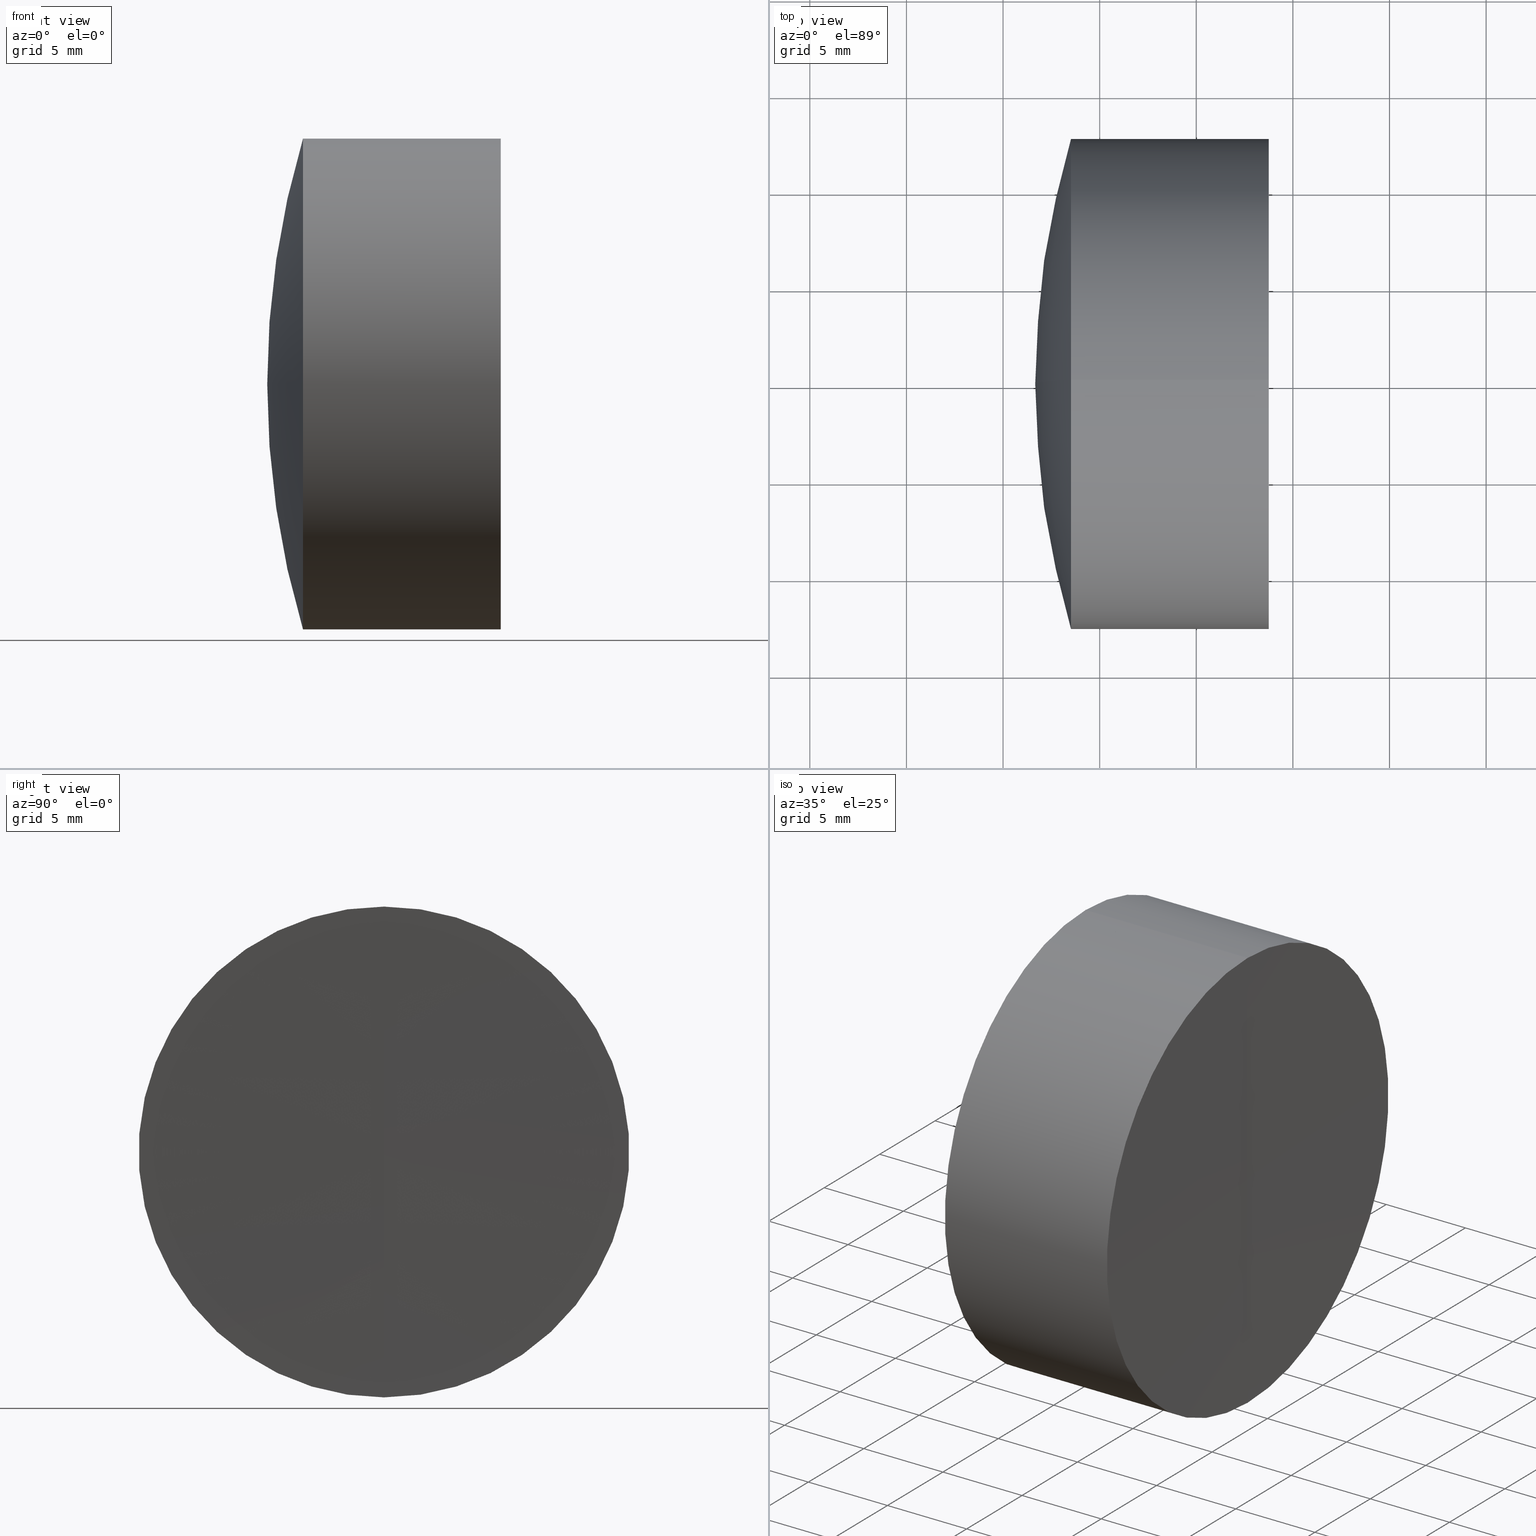
[diagram: canonical four-view strip — front | top / right | iso, engineering-drawing reading convention]
A machine part, canonical four-view strip (front | top / right | iso — engineering-drawing reading convention). The complete STEP part file that produces these views, byte-faithful:
ISO-10303-21;
HEADER;
FILE_DESCRIPTION (( 'STEP AP214' ),
    '1' );
FILE_NAME ('145123.STEP',
    '2019-06-03T05:37:12',
    ( 'user' ),
    ( '΢���й�' ),
    'SwSTEP 2.0',
    'SolidWorks 2016',
    '' );
FILE_SCHEMA (( 'AUTOMOTIVE_DESIGN' ));
ENDSEC;

DATA;
#1 = PRODUCT_RELATED_PRODUCT_CATEGORY ( 'part', '', ( #243 ) ) ;
#2 = CIRCLE ( 'NONE', #263, 930.4999999999998900 ) ;
#3 = EDGE_CURVE ( 'NONE', #50, #273, #102, .T. ) ;
#4 = PRODUCT_DEFINITION_FORMATION_WITH_SPECIFIED_SOURCE ( '�κ�', '', #243, .NOT_KNOWN. ) ;
#5 = PRESENTATION_STYLE_ASSIGNMENT (( #306 ) ) ;
#6 = EDGE_CURVE ( 'NONE', #75, #133, #320, .T. ) ;
#7 = SURFACE_STYLE_USAGE ( .BOTH. , #39 ) ;
#8 = DIRECTION ( 'NONE',  ( -0.0000000000000000000, 1.000000000000000000, 1.224646799147353200E-016 ) ) ;
#9 = DIRECTION ( 'NONE',  ( 0.0000000000000000000, 1.000000000000000000, 0.0000000000000000000 ) ) ;
#10 = EDGE_LOOP ( 'NONE', ( #99, #272, #216 ) ) ;
#11 = ADVANCED_FACE ( 'NONE', ( #296 ), #307, .T. ) ;
#12 = CARTESIAN_POINT ( 'NONE',  ( 1254.165030046136300, 0.0000000000000000000, 0.0000000000000000000 ) ) ;
#13 = DIRECTION ( 'NONE',  ( -1.000000000000000000, -0.0000000000000000000, -0.0000000000000000000 ) ) ;
#14 = PRESENTATION_LAYER_ASSIGNMENT (  '', '', ( #316 ) ) ;
#15 = ORIENTED_EDGE ( 'NONE', *, *, #126, .F. ) ;
#16 = DIRECTION ( 'NONE',  ( 0.0000000000000000000, 0.0000000000000000000, 1.000000000000000000 ) ) ;
#17 = CARTESIAN_POINT ( 'NONE',  ( 316.1869586626397700, 0.0000000000000000000, 12.70000000000000500 ) ) ;
#18 = DIRECTION ( 'NONE',  ( 0.0000000000000000000, -1.000000000000000000, 0.0000000000000000000 ) ) ;
#19 = ORIENTED_EDGE ( 'NONE', *, *, #41, .T. ) ;
#20 = AXIS2_PLACEMENT_3D ( 'NONE', #61, #118, #279 ) ;
#21 = CARTESIAN_POINT ( 'NONE',  ( 262.3650300461362700, 0.0000000000000000000, 6.963127528203664000E-015 ) ) ;
#22 = ORIENTED_EDGE ( 'NONE', *, *, #127, .T. ) ;
#23 = CARTESIAN_POINT ( 'NONE',  ( 313.5157627605192400, -1.555301434917138800E-015, 12.70000000000000600 ) ) ;
#24 = DIRECTION ( 'NONE',  ( 0.0000000000000000000, 1.224646799147353200E-016, -1.000000000000000000 ) ) ;
#25 = EDGE_CURVE ( 'NONE', #211, #70, #344, .T. ) ;
#26 = CIRCLE ( 'NONE', #294, 12.70000000000000600 ) ;
#27 = ORIENTED_EDGE ( 'NONE', *, *, #183, .T. ) ;
#28 = CARTESIAN_POINT ( 'NONE',  ( 124.5233095260452400, 0.0000000000000000000, 12.70000000000000600 ) ) ;
#29 = ORIENTED_EDGE ( 'NONE', *, *, #60, .F. ) ;
#30 = AXIS2_PLACEMENT_3D ( 'NONE', #32, #162, #33 ) ;
#31 = ORIENTED_EDGE ( 'NONE', *, *, #269, .T. ) ;
#32 = CARTESIAN_POINT ( 'NONE',  ( 262.3650300461362700, 0.0000000000000000000, 6.963127528203664000E-015 ) ) ;
#33 = DIRECTION ( 'NONE',  ( 0.0000000000000000000, 0.0000000000000000000, 1.000000000000000000 ) ) ;
#34 = DIRECTION ( 'NONE',  ( 0.0000000000000000000, 1.000000000000000000, 0.0000000000000000000 ) ) ;
#35 = DIRECTION ( 'NONE',  ( -1.000000000000000000, -0.0000000000000000000, -0.0000000000000000000 ) ) ;
#36 = DIRECTION ( 'NONE',  ( 0.0000000000000000000, 0.0000000000000000000, -1.000000000000000000 ) ) ;
#37 = ORIENTED_EDGE ( 'NONE', *, *, #215, .T. ) ;
#38 = MANIFOLD_SOLID_BREP ( '��ת3', #332 ) ;
#39 = SURFACE_SIDE_STYLE ('',( #113 ) ) ;
#40 =( NAMED_UNIT ( * ) PLANE_ANGLE_UNIT ( ) SI_UNIT ( $, .RADIAN. ) );
#41 = EDGE_CURVE ( 'NONE', #273, #50, #153, .T. ) ;
#42 = ORIENTED_EDGE ( 'NONE', *, *, #94, .F. ) ;
#43 = DIRECTION ( 'NONE',  ( 1.000000000000000000, 0.0000000000000000000, 0.0000000000000000000 ) ) ;
#44 = EDGE_CURVE ( 'NONE', #347, #318, #193, .T. ) ;
#45 = PRESENTATION_STYLE_ASSIGNMENT (( #291 ) ) ;
#46 = CARTESIAN_POINT ( 'NONE',  ( 316.1869586626397700, 0.0000000000000000000, 0.0000000000000000000 ) ) ;
#47 = VERTEX_POINT ( 'NONE', #237 ) ;
#48 = AXIS2_PLACEMENT_3D ( 'NONE', #134, #329, #186 ) ;
#49 = ADVANCED_FACE ( 'NONE', ( #245 ), #204, .F. ) ;
#50 = VERTEX_POINT ( 'NONE', #56 ) ;
#51 = AXIS2_PLACEMENT_3D ( 'NONE', #82, #298, #267 ) ;
#52 = CIRCLE ( 'NONE', #58, 55.30000000000001800 ) ;
#53 = ORIENTED_EDGE ( 'NONE', *, *, #183, .F. ) ;
#54 = FILL_AREA_STYLE_COLOUR ( '', #81 ) ;
#55 = DIRECTION ( 'NONE',  ( -0.0000000000000000000, -1.000000000000000000, -0.0000000000000000000 ) ) ;
#56 = CARTESIAN_POINT ( 'NONE',  ( 316.1869586626397700, 1.555301434917139200E-015, -12.69999999999999800 ) ) ;
#57 = EDGE_LOOP ( 'NONE', ( #313, #137, #128 ) ) ;
#58 = AXIS2_PLACEMENT_3D ( 'NONE', #136, #8, #107 ) ;
#59 = FILL_AREA_STYLE ('',( #228 ) ) ;
#60 = EDGE_CURVE ( 'NONE', #211, #64, #150, .T. ) ;
#61 = CARTESIAN_POINT ( 'NONE',  ( 313.5157627605192400, 0.0000000000000000000, 0.0000000000000000000 ) ) ;
#62 = SPHERICAL_SURFACE ( 'NONE', #189, 44.50000000000002800 ) ;
#63 = ADVANCED_FACE ( 'NONE', ( #123 ), #62, .T. ) ;
#64 = VERTEX_POINT ( 'NONE', #286 ) ;
#65 = DIRECTION ( 'NONE',  ( 0.0000000000000000000, 0.0000000000000000000, 1.000000000000000000 ) ) ;
#66 = CARTESIAN_POINT ( 'NONE',  ( 316.1869586626397700, 0.0000000000000000000, 12.70000000000000600 ) ) ;
#67 = AXIS2_PLACEMENT_3D ( 'NONE', #308, #217, #163 ) ;
#68 = DIRECTION ( 'NONE',  ( -1.000000000000000000, -0.0000000000000000000, -0.0000000000000000000 ) ) ;
#69 = DIRECTION ( 'NONE',  ( -0.0000000000000000000, -1.000000000000000000, -0.0000000000000000000 ) ) ;
#70 = VERTEX_POINT ( 'NONE', #23 ) ;
#71 = DIRECTION ( 'NONE',  ( -0.0000000000000000000, 1.000000000000000000, 1.224646799147353200E-016 ) ) ;
#72 = CARTESIAN_POINT ( 'NONE',  ( 0.0000000000000000000, 0.0000000000000000000, 0.0000000000000000000 ) ) ;
#73 = DIRECTION ( 'NONE',  ( 0.0000000000000000000, 1.224646799147353200E-016, -1.000000000000000000 ) ) ;
#74 = EDGE_CURVE ( 'NONE', #297, #273, #271, .T. ) ;
#75 = VERTEX_POINT ( 'NONE', #152 ) ;
#76 = VERTEX_POINT ( 'NONE', #89 ) ;
#77 =( GEOMETRIC_REPRESENTATION_CONTEXT ( 3 ) GLOBAL_UNCERTAINTY_ASSIGNED_CONTEXT ( ( #341 ) ) GLOBAL_UNIT_ASSIGNED_CONTEXT ( ( #119, #177, #213 ) ) REPRESENTATION_CONTEXT ( 'NONE', 'WORKASPACE' ) );
#78 = EDGE_CURVE ( 'NONE', #75, #70, #26, .T. ) ;
#79 = EDGE_LOOP ( 'NONE', ( #261, #328, #15, #337 ) ) ;
#80 = EDGE_CURVE ( 'NONE', #70, #133, #255, .T. ) ;
#81 = COLOUR_RGB ( '',1.000000000000000000, 1.000000000000000000, 1.000000000000000000 ) ;
#82 = CARTESIAN_POINT ( 'NONE',  ( 323.7517025405593900, 0.0000000000000000000, 0.0000000000000000000 ) ) ;
#83 = ORIENTED_EDGE ( 'NONE', *, *, #94, .T. ) ;
#84 = CARTESIAN_POINT ( 'NONE',  ( 262.3650300461362700, 0.0000000000000000000, 6.963127528203664000E-015 ) ) ;
#85 = AXIS2_PLACEMENT_3D ( 'NONE', #101, #155, #290 ) ;
#86 = DIRECTION ( 'NONE',  ( 0.0000000000000000000, 0.0000000000000000000, -1.000000000000000000 ) ) ;
#87 = CARTESIAN_POINT ( 'NONE',  ( 1254.165030046136300, 0.0000000000000000000, 0.0000000000000000000 ) ) ;
#88 = CARTESIAN_POINT ( 'NONE',  ( 1254.165030046136300, 0.0000000000000000000, 0.0000000000000000000 ) ) ;
#89 = CARTESIAN_POINT ( 'NONE',  ( 323.7517025405593900, 1.555301434917136700E-015, -12.69999999999997100 ) ) ;
#90 = DIRECTION ( 'NONE',  ( 0.0000000000000000000, 0.0000000000000000000, -1.000000000000000000 ) ) ;
#91 = EDGE_CURVE ( 'NONE', #297, #50, #188, .T. ) ;
#92 = APPLICATION_PROTOCOL_DEFINITION ( 'draft international standard', 'automotive_design', 1998, #252 ) ;
#93 = ORIENTED_EDGE ( 'NONE', *, *, #25, .T. ) ;
#94 = EDGE_CURVE ( 'NONE', #47, #211, #292, .T. ) ;
#95 = DIRECTION ( 'NONE',  ( 0.0000000000000000000, -1.000000000000000000, -1.224646799147353200E-016 ) ) ;
#96 = UNCERTAINTY_MEASURE_WITH_UNIT (LENGTH_MEASURE( 1.000000000000000100E-005 ), #146, 'distance_accuracy_value', 'NONE');
#97 = STYLED_ITEM ( 'NONE', ( #132 ), #135 ) ;
#98 = DIRECTION ( 'NONE',  ( -1.000000000000000000, -0.0000000000000000000, -0.0000000000000000000 ) ) ;
#99 = ORIENTED_EDGE ( 'NONE', *, *, #44, .F. ) ;
#100 = EDGE_CURVE ( 'NONE', #76, #347, #184, .T. ) ;
#101 = CARTESIAN_POINT ( 'NONE',  ( 124.5233095260452400, 0.0000000000000000000, 0.0000000000000000000 ) ) ;
#102 = CIRCLE ( 'NONE', #178, 12.70000000000001400 ) ;
#103 = SURFACE_SIDE_STYLE ('',( #181 ) ) ;
#104 = EDGE_LOOP ( 'NONE', ( #266, #285, #232 ) ) ;
#105 = CARTESIAN_POINT ( 'NONE',  ( 1254.165030046136300, 0.0000000000000000000, 0.0000000000000000000 ) ) ;
#106 = PRESENTATION_LAYER_ASSIGNMENT (  '', '', ( #97 ) ) ;
#107 = DIRECTION ( 'NONE',  ( 0.0000000000000000000, -1.224646799147353200E-016, 1.000000000000000000 ) ) ;
#108 =( NAMED_UNIT ( * ) PLANE_ANGLE_UNIT ( ) SI_UNIT ( $, .RADIAN. ) );
#109 = SPHERICAL_SURFACE ( 'NONE', #30, 55.30000000000001800 ) ;
#110 = EDGE_LOOP ( 'NONE', ( #167, #282, #196 ) ) ;
#111 = ADVANCED_FACE ( 'NONE', ( #143 ), #109, .F. ) ;
#112 = DIRECTION ( 'NONE',  ( 0.0000000000000000000, 0.0000000000000000000, 1.000000000000000000 ) ) ;
#113 = SURFACE_STYLE_FILL_AREA ( #59 ) ;
#114 = DIRECTION ( 'NONE',  ( 0.0000000000000000000, 0.0000000000000000000, -1.000000000000000000 ) ) ;
#115 = CARTESIAN_POINT ( 'NONE',  ( 311.6650300461362200, 0.0000000000000000000, 3.425649882819919400E-015 ) ) ;
#116 = ORIENTED_EDGE ( 'NONE', *, *, #41, .F. ) ;
#117 = FILL_AREA_STYLE ('',( #145 ) ) ;
#118 = DIRECTION ( 'NONE',  ( -1.000000000000000000, -0.0000000000000000000, -0.0000000000000000000 ) ) ;
#119 =( LENGTH_UNIT ( ) NAMED_UNIT ( * ) SI_UNIT ( .MILLI., .METRE. ) );
#120 = CYLINDRICAL_SURFACE ( 'NONE', #147, 12.69999999999999200 ) ;
#121 = MECHANICAL_DESIGN_GEOMETRIC_PRESENTATION_REPRESENTATION (  '', ( #316 ), #338 ) ;
#122 = ADVANCED_FACE ( 'NONE', ( #236 ), #120, .T. ) ;
#123 = FACE_OUTER_BOUND ( 'NONE', #57, .T. ) ;
#124 = CARTESIAN_POINT ( 'NONE',  ( 356.1650300461362800, 0.0000000000000000000, 6.150489010922782300E-015 ) ) ;
#125 = ORIENTED_EDGE ( 'NONE', *, *, #78, .F. ) ;
#126 = EDGE_CURVE ( 'NONE', #70, #75, #158, .T. ) ;
#127 = EDGE_CURVE ( 'NONE', #47, #64, #52, .T. ) ;
#128 = ORIENTED_EDGE ( 'NONE', *, *, #6, .F. ) ;
#129 = CARTESIAN_POINT ( 'NONE',  ( 356.1650300461362800, 0.0000000000000000000, 6.150489010922782300E-015 ) ) ;
#130 = PRODUCT_DEFINITION_CONTEXT ( 'detailed design', #252, 'design' ) ;
#131 = AXIS2_PLACEMENT_3D ( 'NONE', #315, #98, #317 ) ;
#132 = PRESENTATION_STYLE_ASSIGNMENT (( #7 ) ) ;
#133 = VERTEX_POINT ( 'NONE', #115 ) ;
#134 = CARTESIAN_POINT ( 'NONE',  ( 262.3650300461362700, 0.0000000000000000000, 6.963127528203664000E-015 ) ) ;
#135 = MANIFOLD_SOLID_BREP ( '��ת1', #289 ) ;
#136 = CARTESIAN_POINT ( 'NONE',  ( 262.3650300461362700, 0.0000000000000000000, 6.963127528203664000E-015 ) ) ;
#137 = ORIENTED_EDGE ( 'NONE', *, *, #80, .T. ) ;
#138 = CARTESIAN_POINT ( 'NONE',  ( 262.3650300461362700, 0.0000000000000000000, 6.963127528203664000E-015 ) ) ;
#139 = EDGE_LOOP ( 'NONE', ( #208, #212, #19 ) ) ;
#140 = DIRECTION ( 'NONE',  ( -1.000000000000000000, -0.0000000000000000000, -0.0000000000000000000 ) ) ;
#141 = DIRECTION ( 'NONE',  ( -0.0000000000000000000, -1.000000000000000000, -0.0000000000000000000 ) ) ;
#142 = DIRECTION ( 'NONE',  ( -1.000000000000000000, -0.0000000000000000000, -0.0000000000000000000 ) ) ;
#143 = FACE_OUTER_BOUND ( 'NONE', #259, .T. ) ;
#144 = CARTESIAN_POINT ( 'NONE',  ( -0.5519199926577972300, 0.0000000000000000000, 12.69999999999999200 ) ) ;
#145 = FILL_AREA_STYLE_COLOUR ( '', #257 ) ;
#146 =( LENGTH_UNIT ( ) NAMED_UNIT ( * ) SI_UNIT ( .MILLI., .METRE. ) );
#147 = AXIS2_PLACEMENT_3D ( 'NONE', #214, #197, #187 ) ;
#148 = ADVANCED_FACE ( 'NONE', ( #159 ), #265, .T. ) ;
#149 = ORIENTED_EDGE ( 'NONE', *, *, #74, .F. ) ;
#150 = CIRCLE ( 'NONE', #330, 12.70000000000000600 ) ;
#151 = EDGE_CURVE ( 'NONE', #76, #318, #2, .T. ) ;
#152 = CARTESIAN_POINT ( 'NONE',  ( 313.5157627605192400, 0.0000000000000000000, -12.69999999999999900 ) ) ;
#153 = CIRCLE ( 'NONE', #131, 12.70000000000001400 ) ;
#154 = ORIENTED_EDGE ( 'NONE', *, *, #100, .T. ) ;
#155 = DIRECTION ( 'NONE',  ( -1.000000000000000000, -0.0000000000000000000, -0.0000000000000000000 ) ) ;
#156 = MECHANICAL_DESIGN_GEOMETRIC_PRESENTATION_REPRESENTATION (  '', ( #288 ), #77 ) ;
#157 = DIRECTION ( 'NONE',  ( 0.0000000000000000000, 0.0000000000000000000, 1.000000000000000000 ) ) ;
#158 = CIRCLE ( 'NONE', #20, 12.70000000000000600 ) ;
#159 = FACE_OUTER_BOUND ( 'NONE', #190, .T. ) ;
#160 = MECHANICAL_DESIGN_GEOMETRIC_PRESENTATION_REPRESENTATION (  '', ( #97 ), #169 ) ;
#161 = ORIENTED_EDGE ( 'NONE', *, *, #233, .F. ) ;
#162 = DIRECTION ( 'NONE',  ( 0.0000000000000000000, 1.000000000000000000, 0.0000000000000000000 ) ) ;
#163 = DIRECTION ( 'NONE',  ( 0.0000000000000000000, 0.0000000000000000000, 1.000000000000000000 ) ) ;
#164 = CARTESIAN_POINT ( 'NONE',  ( 313.5157627605192400, 0.0000000000000000000, 0.0000000000000000000 ) ) ;
#165 = CARTESIAN_POINT ( 'NONE',  ( -0.5519199926577972300, 1.555301434917137800E-015, -12.69999999999999200 ) ) ;
#166 = CARTESIAN_POINT ( 'NONE',  ( 316.1869586626397700, 0.0000000000000000000, 0.0000000000000000000 ) ) ;
#167 = ORIENTED_EDGE ( 'NONE', *, *, #215, .F. ) ;
#168 = DIRECTION ( 'NONE',  ( -0.0000000000000000000, -1.000000000000000000, -0.0000000000000000000 ) ) ;
#169 =( GEOMETRIC_REPRESENTATION_CONTEXT ( 3 ) GLOBAL_UNCERTAINTY_ASSIGNED_CONTEXT ( ( #280 ) ) GLOBAL_UNIT_ASSIGNED_CONTEXT ( ( #268, #108, #300 ) ) REPRESENTATION_CONTEXT ( 'NONE', 'WORKASPACE' ) );
#170 = DIRECTION ( 'NONE',  ( -1.000000000000000000, -0.0000000000000000000, -0.0000000000000000000 ) ) ;
#171 = ADVANCED_FACE ( 'NONE', ( #336 ), #207, .T. ) ;
#172 =( NAMED_UNIT ( * ) SI_UNIT ( $, .STERADIAN. ) SOLID_ANGLE_UNIT ( ) );
#173 = ADVANCED_FACE ( 'NONE', ( #235 ), #238, .T. ) ;
#174 = ORIENTED_EDGE ( 'NONE', *, *, #3, .T. ) ;
#175 = AXIS2_PLACEMENT_3D ( 'NONE', #129, #322, #157 ) ;
#176 = SURFACE_STYLE_FILL_AREA ( #117 ) ;
#177 =( NAMED_UNIT ( * ) PLANE_ANGLE_UNIT ( ) SI_UNIT ( $, .RADIAN. ) );
#178 = AXIS2_PLACEMENT_3D ( 'NONE', #240, #180, #209 ) ;
#179 = EDGE_CURVE ( 'NONE', #76, #50, #194, .T. ) ;
#180 = DIRECTION ( 'NONE',  ( -1.000000000000000000, -0.0000000000000000000, -0.0000000000000000000 ) ) ;
#181 = SURFACE_STYLE_FILL_AREA ( #264 ) ;
#182 = DIRECTION ( 'NONE',  ( -1.000000000000000000, -0.0000000000000000000, -0.0000000000000000000 ) ) ;
#183 = EDGE_CURVE ( 'NONE', #64, #211, #205, .T. ) ;
#184 = CIRCLE ( 'NONE', #51, 12.69999999999997100 ) ;
#185 = AXIS2_PLACEMENT_3D ( 'NONE', #84, #34, #16 ) ;
#186 = DIRECTION ( 'NONE',  ( 0.0000000000000000000, 0.0000000000000000000, -1.000000000000000000 ) ) ;
#187 = DIRECTION ( 'NONE',  ( 0.0000000000000000000, 0.0000000000000000000, 1.000000000000000000 ) ) ;
#188 = CIRCLE ( 'NONE', #302, 55.30000000000001800 ) ;
#189 = AXIS2_PLACEMENT_3D ( 'NONE', #124, #55, #256 ) ;
#190 = EDGE_LOOP ( 'NONE', ( #251, #154, #31, #242 ) ) ;
#191 = DIRECTION ( 'NONE',  ( 0.0000000000000000000, 0.0000000000000000000, 1.000000000000000000 ) ) ;
#192 = CARTESIAN_POINT ( 'NONE',  ( 317.6650300461362800, 0.0000000000000000000, 1.034927592784609700E-014 ) ) ;
#193 = CIRCLE ( 'NONE', #258, 930.4999999999998900 ) ;
#194 = LINE ( 'NONE', #165, #220 ) ;
#195 = SURFACE_SIDE_STYLE ('',( #176 ) ) ;
#196 = ORIENTED_EDGE ( 'NONE', *, *, #151, .F. ) ;
#197 = DIRECTION ( 'NONE',  ( -1.000000000000000000, -0.0000000000000000000, -0.0000000000000000000 ) ) ;
#198 = DIRECTION ( 'NONE',  ( 0.0000000000000000000, 0.0000000000000000000, 1.000000000000000000 ) ) ;
#199 = AXIS2_PLACEMENT_3D ( 'NONE', #138, #18, #90 ) ;
#200 = ADVANCED_FACE ( 'NONE', ( #221 ), #284, .F. ) ;
#201 = EDGE_LOOP ( 'NONE', ( #37, #342, #116, #303 ) ) ;
#202 = DIRECTION ( 'NONE',  ( 0.0000000000000000000, 0.0000000000000000000, 1.000000000000000000 ) ) ;
#203 = AXIS2_PLACEMENT_3D ( 'NONE', #222, #168, #86 ) ;
#204 = SPHERICAL_SURFACE ( 'NONE', #223, 55.30000000000001800 ) ;
#205 = CIRCLE ( 'NONE', #283, 12.70000000000000600 ) ;
#206 = AXIS2_PLACEMENT_3D ( 'NONE', #301, #9, #331 ) ;
#207 = SPHERICAL_SURFACE ( 'NONE', #185, 55.30000000000001800 ) ;
#208 = ORIENTED_EDGE ( 'NONE', *, *, #91, .F. ) ;
#209 = DIRECTION ( 'NONE',  ( 0.0000000000000000000, 0.0000000000000000000, 1.000000000000000000 ) ) ;
#210 = CARTESIAN_POINT ( 'NONE',  ( 262.3650300461362700, 0.0000000000000000000, 6.963127528203664000E-015 ) ) ;
#211 = VERTEX_POINT ( 'NONE', #66 ) ;
#212 = ORIENTED_EDGE ( 'NONE', *, *, #74, .T. ) ;
#213 =( NAMED_UNIT ( * ) SI_UNIT ( $, .STERADIAN. ) SOLID_ANGLE_UNIT ( ) );
#214 = CARTESIAN_POINT ( 'NONE',  ( -0.5519199926577972300, 0.0000000000000000000, 0.0000000000000000000 ) ) ;
#215 = EDGE_CURVE ( 'NONE', #347, #76, #281, .T. ) ;
#216 = ORIENTED_EDGE ( 'NONE', *, *, #151, .T. ) ;
#217 = DIRECTION ( 'NONE',  ( -1.000000000000000000, -0.0000000000000000000, -0.0000000000000000000 ) ) ;
#218 = CARTESIAN_POINT ( 'NONE',  ( 124.5233095260452400, 0.0000000000000000000, 0.0000000000000000000 ) ) ;
#219 = ADVANCED_FACE ( 'NONE', ( #270 ), #314, .T. ) ;
#220 = VECTOR ( 'NONE', #140, 1000.000000000000000 ) ;
#221 = FACE_OUTER_BOUND ( 'NONE', #10, .T. ) ;
#222 = CARTESIAN_POINT ( 'NONE',  ( 356.1650300461362800, 0.0000000000000000000, 6.150489010922782300E-015 ) ) ;
#223 = AXIS2_PLACEMENT_3D ( 'NONE', #210, #287, #327 ) ;
#224 = CARTESIAN_POINT ( 'NONE',  ( 323.6650300461363400, 0.0000000000000000000, -5.697669233033059700E-014 ) ) ;
#225 = DIRECTION ( 'NONE',  ( 0.0000000000000000000, -1.224646799147353200E-016, 1.000000000000000000 ) ) ;
#226 = AXIS2_PLACEMENT_3D ( 'NONE', #304, #142, #334 ) ;
#227 =( NAMED_UNIT ( * ) SI_UNIT ( $, .STERADIAN. ) SOLID_ANGLE_UNIT ( ) );
#228 = FILL_AREA_STYLE_COLOUR ( '', #312 ) ;
#229 = PRODUCT_CONTEXT ( 'NONE', #278, 'mechanical' ) ;
#230 = ORIENTED_EDGE ( 'NONE', *, *, #127, .F. ) ;
#231 = ADVANCED_FACE ( 'NONE', ( #241 ), #321, .T. ) ;
#232 = ORIENTED_EDGE ( 'NONE', *, *, #6, .T. ) ;
#233 = EDGE_CURVE ( 'NONE', #64, #75, #260, .T. ) ;
#234 = DIRECTION ( 'NONE',  ( -1.000000000000000000, -0.0000000000000000000, -0.0000000000000000000 ) ) ;
#235 = FACE_OUTER_BOUND ( 'NONE', #309, .T. ) ;
#236 = FACE_OUTER_BOUND ( 'NONE', #201, .T. ) ;
#237 = CARTESIAN_POINT ( 'NONE',  ( 317.6650300461362800, 0.0000000000000000000, 1.034927592784609700E-014 ) ) ;
#238 = SPHERICAL_SURFACE ( 'NONE', #206, 55.30000000000001800 ) ;
#239 = AXIS2_PLACEMENT_3D ( 'NONE', #333, #95, #73 ) ;
#240 = CARTESIAN_POINT ( 'NONE',  ( 316.1869586626397700, 0.0000000000000000000, 0.0000000000000000000 ) ) ;
#241 = FACE_OUTER_BOUND ( 'NONE', #104, .T. ) ;
#242 = ORIENTED_EDGE ( 'NONE', *, *, #3, .F. ) ;
#243 = PRODUCT ( '145123', '145123', '', ( #229 ) ) ;
#244 = SHAPE_DEFINITION_REPRESENTATION ( #310, #253 ) ;
#245 = FACE_OUTER_BOUND ( 'NONE', #139, .T. ) ;
#246 = AXIS2_PLACEMENT_3D ( 'NONE', #12, #141, #36 ) ;
#247 = DIRECTION ( 'NONE',  ( -1.000000000000000000, -0.0000000000000000000, -0.0000000000000000000 ) ) ;
#248 = CARTESIAN_POINT ( 'NONE',  ( 124.5233095260452400, 1.555301434917139200E-015, -12.70000000000000600 ) ) ;
#249 =( LENGTH_UNIT ( ) NAMED_UNIT ( * ) SI_UNIT ( .MILLI., .METRE. ) );
#250 = APPLICATION_PROTOCOL_DEFINITION ( 'draft international standard', 'automotive_design', 1998, #278 ) ;
#251 = ORIENTED_EDGE ( 'NONE', *, *, #179, .F. ) ;
#252 = APPLICATION_CONTEXT ( 'automotive_design' ) ;
#253 = ADVANCED_BREP_SHAPE_REPRESENTATION ( '145123', ( #135, #38, #323 ), #254 ) ;
#254 =( GEOMETRIC_REPRESENTATION_CONTEXT ( 3 ) GLOBAL_UNCERTAINTY_ASSIGNED_CONTEXT ( ( #299 ) ) GLOBAL_UNIT_ASSIGNED_CONTEXT ( ( #249, #40, #227 ) ) REPRESENTATION_CONTEXT ( 'NONE', 'WORKASPACE' ) );
#255 = CIRCLE ( 'NONE', #239, 44.50000000000002800 ) ;
#256 = DIRECTION ( 'NONE',  ( 0.0000000000000000000, 0.0000000000000000000, -1.000000000000000000 ) ) ;
#257 = COLOUR_RGB ( '',1.000000000000000000, 1.000000000000000000, 1.000000000000000000 ) ;
#258 = AXIS2_PLACEMENT_3D ( 'NONE', #105, #293, #24 ) ;
#259 = EDGE_LOOP ( 'NONE', ( #149, #262, #174 ) ) ;
#260 = LINE ( 'NONE', #248, #305 ) ;
#261 = ORIENTED_EDGE ( 'NONE', *, *, #60, .T. ) ;
#262 = ORIENTED_EDGE ( 'NONE', *, *, #91, .T. ) ;
#263 = AXIS2_PLACEMENT_3D ( 'NONE', #88, #335, #274 ) ;
#264 = FILL_AREA_STYLE ('',( #54 ) ) ;
#265 = CYLINDRICAL_SURFACE ( 'NONE', #67, 12.69999999999999200 ) ;
#266 = ORIENTED_EDGE ( 'NONE', *, *, #80, .F. ) ;
#267 = DIRECTION ( 'NONE',  ( 0.0000000000000000000, 0.0000000000000000000, 1.000000000000000000 ) ) ;
#268 =( LENGTH_UNIT ( ) NAMED_UNIT ( * ) SI_UNIT ( .MILLI., .METRE. ) );
#269 = EDGE_CURVE ( 'NONE', #347, #273, #319, .T. ) ;
#270 = FACE_OUTER_BOUND ( 'NONE', #275, .T. ) ;
#271 = CIRCLE ( 'NONE', #199, 55.30000000000001800 ) ;
#272 = ORIENTED_EDGE ( 'NONE', *, *, #100, .F. ) ;
#273 = VERTEX_POINT ( 'NONE', #17 ) ;
#274 = DIRECTION ( 'NONE',  ( 0.0000000000000000000, 0.0000000000000000000, 1.000000000000000000 ) ) ;
#275 = EDGE_LOOP ( 'NONE', ( #161, #27, #93, #125 ) ) ;
#276 = CARTESIAN_POINT ( 'NONE',  ( 323.7517025405593900, 0.0000000000000000000, 12.69999999999997100 ) ) ;
#277 = AXIS2_PLACEMENT_3D ( 'NONE', #218, #247, #112 ) ;
#278 = APPLICATION_CONTEXT ( 'automotive_design' ) ;
#279 = DIRECTION ( 'NONE',  ( 0.0000000000000000000, 0.0000000000000000000, 1.000000000000000000 ) ) ;
#280 = UNCERTAINTY_MEASURE_WITH_UNIT (LENGTH_MEASURE( 1.000000000000000100E-005 ), #268, 'distance_accuracy_value', 'NONE');
#281 = CIRCLE ( 'NONE', #226, 12.69999999999997100 ) ;
#282 = ORIENTED_EDGE ( 'NONE', *, *, #44, .T. ) ;
#283 = AXIS2_PLACEMENT_3D ( 'NONE', #166, #13, #191 ) ;
#284 = SPHERICAL_SURFACE ( 'NONE', #246, 930.4999999999998900 ) ;
#285 = ORIENTED_EDGE ( 'NONE', *, *, #126, .T. ) ;
#286 = CARTESIAN_POINT ( 'NONE',  ( 316.1869586626397700, 1.555301434917139200E-015, -12.70000000000000600 ) ) ;
#287 = DIRECTION ( 'NONE',  ( 0.0000000000000000000, 1.000000000000000000, 0.0000000000000000000 ) ) ;
#288 = STYLED_ITEM ( 'NONE', ( #45 ), #38 ) ;
#289 = CLOSED_SHELL ( 'NONE', ( #171, #11, #63, #231, #219, #173 ) ) ;
#290 = DIRECTION ( 'NONE',  ( 0.0000000000000000000, 0.0000000000000000000, 1.000000000000000000 ) ) ;
#291 = SURFACE_STYLE_USAGE ( .BOTH. , #103 ) ;
#292 = CIRCLE ( 'NONE', #48, 55.30000000000001800 ) ;
#293 = DIRECTION ( 'NONE',  ( 0.0000000000000000000, -1.000000000000000000, -1.224646799147353200E-016 ) ) ;
#294 = AXIS2_PLACEMENT_3D ( 'NONE', #164, #35, #65 ) ;
#295 = SPHERICAL_SURFACE ( 'NONE', #311, 930.4999999999998900 ) ;
#296 = FACE_OUTER_BOUND ( 'NONE', #79, .T. ) ;
#297 = VERTEX_POINT ( 'NONE', #192 ) ;
#298 = DIRECTION ( 'NONE',  ( -1.000000000000000000, -0.0000000000000000000, -0.0000000000000000000 ) ) ;
#299 = UNCERTAINTY_MEASURE_WITH_UNIT (LENGTH_MEASURE( 1.000000000000000100E-005 ), #249, 'distance_accuracy_value', 'NONE');
#300 =( NAMED_UNIT ( * ) SI_UNIT ( $, .STERADIAN. ) SOLID_ANGLE_UNIT ( ) );
#301 = CARTESIAN_POINT ( 'NONE',  ( 262.3650300461362700, 0.0000000000000000000, 6.963127528203664000E-015 ) ) ;
#302 = AXIS2_PLACEMENT_3D ( 'NONE', #21, #71, #225 ) ;
#303 = ORIENTED_EDGE ( 'NONE', *, *, #269, .F. ) ;
#304 = CARTESIAN_POINT ( 'NONE',  ( 323.7517025405593900, 0.0000000000000000000, 0.0000000000000000000 ) ) ;
#305 = VECTOR ( 'NONE', #68, 1000.000000000000000 ) ;
#306 = SURFACE_STYLE_USAGE ( .BOTH. , #195 ) ;
#307 = CYLINDRICAL_SURFACE ( 'NONE', #85, 12.70000000000000600 ) ;
#308 = CARTESIAN_POINT ( 'NONE',  ( -0.5519199926577972300, 0.0000000000000000000, 0.0000000000000000000 ) ) ;
#309 = EDGE_LOOP ( 'NONE', ( #230, #83, #53 ) ) ;
#310 = PRODUCT_DEFINITION_SHAPE ( 'NONE', 'NONE',  #325 ) ;
#311 = AXIS2_PLACEMENT_3D ( 'NONE', #87, #69, #114 ) ;
#312 = COLOUR_RGB ( '',1.000000000000000000, 1.000000000000000000, 1.000000000000000000 ) ;
#313 = ORIENTED_EDGE ( 'NONE', *, *, #78, .T. ) ;
#314 = CYLINDRICAL_SURFACE ( 'NONE', #277, 12.70000000000000600 ) ;
#315 = CARTESIAN_POINT ( 'NONE',  ( 316.1869586626397700, 0.0000000000000000000, 0.0000000000000000000 ) ) ;
#316 = STYLED_ITEM ( 'NONE', ( #5 ), #253 ) ;
#317 = DIRECTION ( 'NONE',  ( 0.0000000000000000000, 0.0000000000000000000, 1.000000000000000000 ) ) ;
#318 = VERTEX_POINT ( 'NONE', #224 ) ;
#319 = LINE ( 'NONE', #144, #345 ) ;
#320 = CIRCLE ( 'NONE', #175, 44.50000000000002800 ) ;
#321 = SPHERICAL_SURFACE ( 'NONE', #203, 44.50000000000002800 ) ;
#322 = DIRECTION ( 'NONE',  ( 0.0000000000000000000, 1.000000000000000000, -0.0000000000000000000 ) ) ;
#323 = AXIS2_PLACEMENT_3D ( 'NONE', #72, #198, #43 ) ;
#324 = EDGE_LOOP ( 'NONE', ( #42, #22, #29 ) ) ;
#325 = PRODUCT_DEFINITION ( 'δ֪', '', #4, #130 ) ;
#326 = FACE_OUTER_BOUND ( 'NONE', #110, .T. ) ;
#327 = DIRECTION ( 'NONE',  ( 0.0000000000000000000, 0.0000000000000000000, 1.000000000000000000 ) ) ;
#328 = ORIENTED_EDGE ( 'NONE', *, *, #233, .T. ) ;
#329 = DIRECTION ( 'NONE',  ( 0.0000000000000000000, -1.000000000000000000, 0.0000000000000000000 ) ) ;
#330 = AXIS2_PLACEMENT_3D ( 'NONE', #46, #234, #202 ) ;
#331 = DIRECTION ( 'NONE',  ( 0.0000000000000000000, 0.0000000000000000000, 1.000000000000000000 ) ) ;
#332 = CLOSED_SHELL ( 'NONE', ( #346, #122, #111, #49, #148, #200 ) ) ;
#333 = CARTESIAN_POINT ( 'NONE',  ( 356.1650300461362800, 0.0000000000000000000, 6.150489010922782300E-015 ) ) ;
#334 = DIRECTION ( 'NONE',  ( 0.0000000000000000000, 0.0000000000000000000, 1.000000000000000000 ) ) ;
#335 = DIRECTION ( 'NONE',  ( 0.0000000000000000000, 1.000000000000000000, -0.0000000000000000000 ) ) ;
#336 = FACE_OUTER_BOUND ( 'NONE', #324, .T. ) ;
#337 = ORIENTED_EDGE ( 'NONE', *, *, #25, .F. ) ;
#338 =( GEOMETRIC_REPRESENTATION_CONTEXT ( 3 ) GLOBAL_UNCERTAINTY_ASSIGNED_CONTEXT ( ( #96 ) ) GLOBAL_UNIT_ASSIGNED_CONTEXT ( ( #146, #339, #172 ) ) REPRESENTATION_CONTEXT ( 'NONE', 'WORKASPACE' ) );
#339 =( NAMED_UNIT ( * ) PLANE_ANGLE_UNIT ( ) SI_UNIT ( $, .RADIAN. ) );
#340 = VECTOR ( 'NONE', #182, 1000.000000000000000 ) ;
#341 = UNCERTAINTY_MEASURE_WITH_UNIT (LENGTH_MEASURE( 1.000000000000000100E-005 ), #119, 'distance_accuracy_value', 'NONE');
#342 = ORIENTED_EDGE ( 'NONE', *, *, #179, .T. ) ;
#343 = PRESENTATION_LAYER_ASSIGNMENT (  '', '', ( #288 ) ) ;
#344 = LINE ( 'NONE', #28, #340 ) ;
#345 = VECTOR ( 'NONE', #170, 1000.000000000000000 ) ;
#346 = ADVANCED_FACE ( 'NONE', ( #326 ), #295, .F. ) ;
#347 = VERTEX_POINT ( 'NONE', #276 ) ;
ENDSEC;
END-ISO-10303-21;
